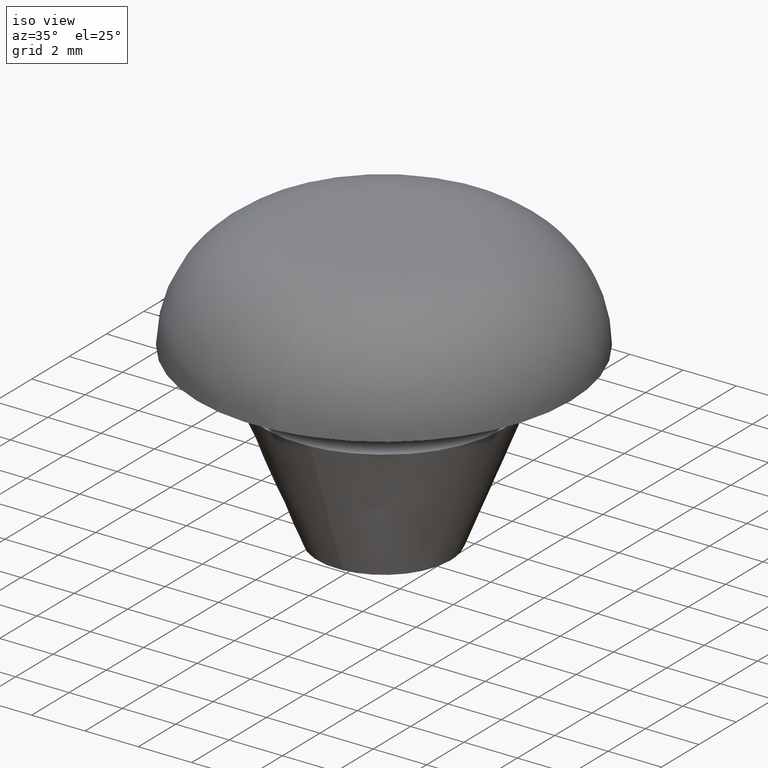
[diagram: clean part render]
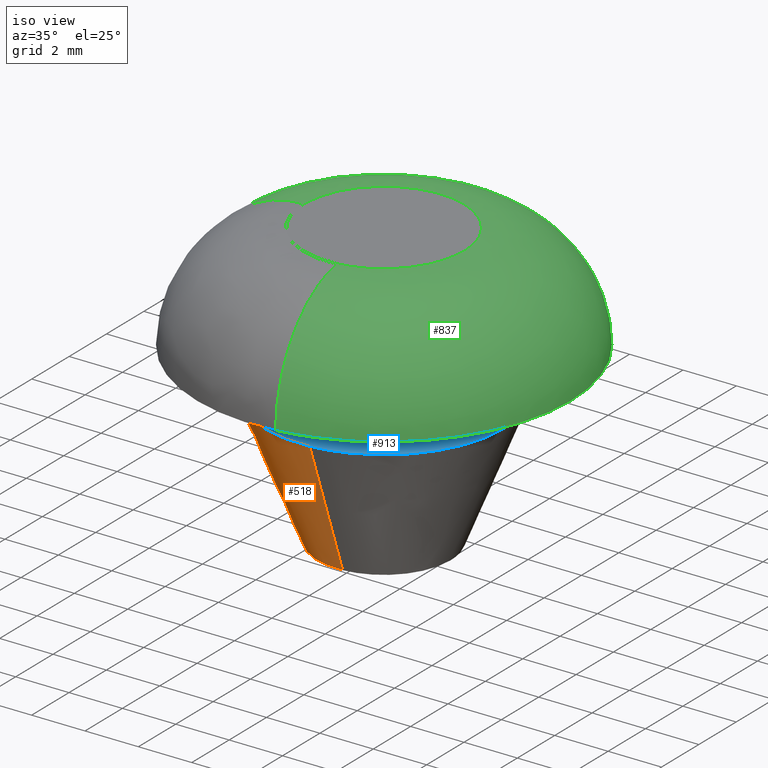
[diagram: same view with three faces highlighted in distinct colors, each labeled with its STEP entity id]
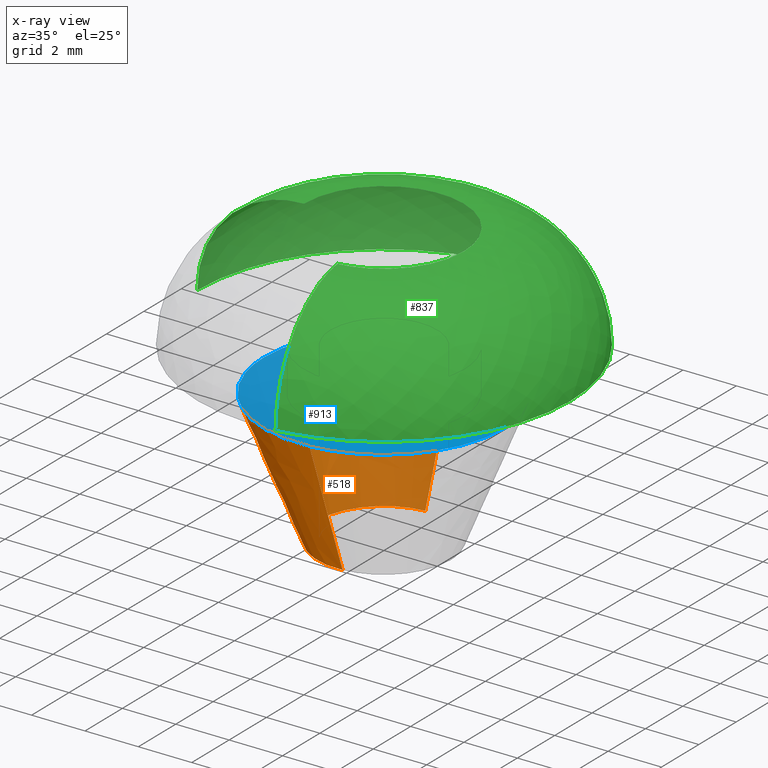
[diagram: x-ray of the same camera — body ghosted, the three highlighted faces saturated]
A machine part, iso view with three faces highlighted in distinct colors.
The next image is the same camera in x-ray (body ghosted, the three faces saturated) — at least one of them is partly hidden behind the body in this view.
Their STEP definitions:

[orange] entity #518 — the highlighted face is a freeform B-spline surface patch.
#420=CARTESIAN_POINT('',(-0.192224784533222,2.442447467646163,-0.125000000000000));
#421=CARTESIAN_POINT('',(-2.634672252179385,2.250222683112942,-0.125000000000000));
#422=CARTESIAN_POINT('',(-2.442447467646163,-0.192224784533222,-0.125000000000000));
#423=CARTESIAN_POINT('',(-2.250222683112942,-2.634672252179385,-0.125000000000000));
#424=CARTESIAN_POINT('',(0.192224784533222,-2.442447467646163,-0.125000000000000));
#425=CARTESIAN_POINT('',(-0.357086959431357,4.537220015152898,5.128125000000001));
#426=CARTESIAN_POINT('',(-4.894306974584256,4.180133055721541,5.128125000000001));
#427=CARTESIAN_POINT('',(-4.537220015152898,-0.357086959431357,5.128125000000001));
#428=CARTESIAN_POINT('',(-4.180133055721541,-4.894306974584256,5.128125000000001));
#429=CARTESIAN_POINT('',(0.357086959431357,-4.537220015152898,5.128125000000001));
#437=(BOUNDED_SURFACE()B_SPLINE_SURFACE(2,1,((#420,#425),(#421,#426),(#422,#427),(#423,#428),(#424,#429)),.UNSPECIFIED.,.F.,.F.,.U.)B_SPLINE_SURFACE_WITH_KNOTS((3,2,3),(2,2),(0.0,7.540757903002195,15.081515806004390),(0.0,5.657788775495690),.UNSPECIFIED.)GEOMETRIC_REPRESENTATION_ITEM()RATIONAL_B_SPLINE_SURFACE(((1.0,1.0),(0.707106781186548,0.707106781186548),(1.0,1.0),(0.707106781186548,0.707106781186548),(1.0,1.0)))REPRESENTATION_ITEM('')SURFACE());
#438=CARTESIAN_POINT('',(-2.500000000000000,0.0,0.0));
#439=VERTEX_POINT('',#438);
#440=CARTESIAN_POINT('',(-0.196147739338507,2.492293334332739,3.503475E-012));
#441=VERTEX_POINT('',#440);
#442=CARTESIAN_POINT('',(-2.500000000000000,0.0,0.0));
#443=CARTESIAN_POINT('',(-2.500000000000000,2.310976229110576,0.0));
#444=CARTESIAN_POINT('',(-0.196147739338507,2.492293334332738,3.503475E-012));
#452=(BOUNDED_CURVE()B_SPLINE_CURVE(2,(#442,#443,#444),.UNSPECIFIED.,.F.,.U.)B_SPLINE_CURVE_WITH_KNOTS((3,3),(0.0,0.236331300630183),.UNSPECIFIED.)CURVE()GEOMETRIC_REPRESENTATION_ITEM()RATIONAL_B_SPLINE_CURVE((1.0,0.723120658608224,0.969723356166423))REPRESENTATION_ITEM(''));
#453=EDGE_CURVE('',#439,#441,#452,.T.);
#454=ORIENTED_EDGE('',*,*,#453,.F.);
#455=CARTESIAN_POINT('',(0.196147739338507,-2.492293334332739,3.503475E-012));
#456=VERTEX_POINT('',#455);
#457=CARTESIAN_POINT('',(0.196147739338507,-2.492293334332739,3.503475E-012));
#458=CARTESIAN_POINT('',(0.098225267538045,-2.500000000000000,0.0));
#459=CARTESIAN_POINT('',(0.0,-2.500000000000000,0.0));
#460=CARTESIAN_POINT('',(-2.500000000000000,-2.500000000000000,0.0));
#461=CARTESIAN_POINT('',(-2.500000000000000,0.0,0.0));
#469=(BOUNDED_CURVE()B_SPLINE_CURVE(2,(#457,#458,#459,#460,#461),.UNSPECIFIED.,.F.,.U.)B_SPLINE_CURVE_WITH_KNOTS((3,2,3),(0.736331300630183,0.750000000000000,1.0),.UNSPECIFIED.)CURVE()GEOMETRIC_REPRESENTATION_ITEM()RATIONAL_B_SPLINE_CURVE((0.969723356166423,0.983986122578324,1.0,0.707106781186548,1.0))REPRESENTATION_ITEM(''));
#470=EDGE_CURVE('',#456,#439,#469,.T.);
#471=ORIENTED_EDGE('',*,*,#470,.F.);
#472=CARTESIAN_POINT('',(0.353065930785465,-4.486128001799032,5.000000000001885));
#473=VERTEX_POINT('',#472);
#474=CARTESIAN_POINT('',(0.196147739338507,-2.492293334332739,3.503475E-012));
#475=CARTESIAN_POINT('',(0.353065930785465,-4.486128001799032,5.000000000001885));
#476=QUASI_UNIFORM_CURVE('',1,(#474,#475),.UNSPECIFIED.,.F.,.U.);
#477=EDGE_CURVE('',#456,#473,#476,.T.);
#478=ORIENTED_EDGE('',*,*,#477,.T.);
#479=CARTESIAN_POINT('',(-4.500000000000000,0.0,5.0));
#480=VERTEX_POINT('',#479);
#481=CARTESIAN_POINT('',(0.353065930785465,-4.486128001799032,5.000000000001885));
#482=CARTESIAN_POINT('',(0.176805481544663,-4.499999999999999,5.0));
#483=CARTESIAN_POINT('',(0.0,-4.500000000000000,5.0));
#484=CARTESIAN_POINT('',(-4.500000000000000,-4.500000000000000,4.999999999999999));
#485=CARTESIAN_POINT('',(-4.500000000000000,0.0,5.0));
#493=(BOUNDED_CURVE()B_SPLINE_CURVE(2,(#481,#482,#483,#484,#485),.UNSPECIFIED.,.F.,.U.)B_SPLINE_CURVE_WITH_KNOTS((3,2,3),(0.736331300631995,0.750000000000000,1.0),.UNSPECIFIED.)CURVE()GEOMETRIC_REPRESENTATION_ITEM()RATIONAL_B_SPLINE_CURVE((0.969723356170204,0.983986122580446,1.0,0.707106781186547,1.0))REPRESENTATION_ITEM(''));
#494=EDGE_CURVE('',#473,#480,#493,.T.);
#495=ORIENTED_EDGE('',*,*,#494,.T.);
#496=CARTESIAN_POINT('',(-0.353065930785465,4.486128001799031,5.000000000001885));
#497=VERTEX_POINT('',#496);
#498=CARTESIAN_POINT('',(-4.500000000000000,0.0,5.0));
#499=CARTESIAN_POINT('',(-4.500000000000002,4.159757212443140,5.000000000000001));
#500=CARTESIAN_POINT('',(-0.353065930785465,4.486128001799031,5.000000000001886));
#508=(BOUNDED_CURVE()B_SPLINE_CURVE(2,(#498,#499,#500),.UNSPECIFIED.,.F.,.U.)B_SPLINE_CURVE_WITH_KNOTS((3,3),(0.0,0.236331300631995),.UNSPECIFIED.)CURVE()GEOMETRIC_REPRESENTATION_ITEM()RATIONAL_B_SPLINE_CURVE((1.0,0.723120658606101,0.969723356170204))REPRESENTATION_ITEM(''));
#509=EDGE_CURVE('',#480,#497,#508,.T.);
#510=ORIENTED_EDGE('',*,*,#509,.T.);
#511=CARTESIAN_POINT('',(-0.196147739338507,2.492293334332739,3.503475E-012));
#512=CARTESIAN_POINT('',(-0.353065930785465,4.486128001799031,5.000000000001885));
#513=QUASI_UNIFORM_CURVE('',1,(#511,#512),.UNSPECIFIED.,.F.,.U.);
#514=EDGE_CURVE('',#441,#497,#513,.T.);
#515=ORIENTED_EDGE('',*,*,#514,.F.);
#516=EDGE_LOOP('',(#454,#471,#478,#495,#510,#515));
#517=FACE_OUTER_BOUND('',#516,.T.);
#518=ADVANCED_FACE('',(#517),#437,.T.);

[blue] entity #913 — the highlighted face is a freeform B-spline surface patch.
#290=CARTESIAN_POINT('',(0.183141240990780,-2.994404663005506,5.0));
#291=VERTEX_POINT('',#290);
#297=CARTESIAN_POINT('',(3.0,0.0,5.0));
#298=VERTEX_POINT('',#297);
#299=CARTESIAN_POINT('',(3.0,0.0,5.0));
#300=CARTESIAN_POINT('',(3.000000000000000,-2.822122334172474,5.0));
#301=CARTESIAN_POINT('',(0.183141240990780,-2.994404663005506,5.0));
#309=(BOUNDED_CURVE()B_SPLINE_CURVE(2,(#299,#300,#301),.UNSPECIFIED.,.F.,.U.)B_SPLINE_CURVE_WITH_KNOTS((3,3),(0.500000000000000,0.739333214493585),.UNSPECIFIED.)CURVE()GEOMETRIC_REPRESENTATION_ITEM()RATIONAL_B_SPLINE_CURVE((1.0,0.719603697752014,0.976072582297030))REPRESENTATION_ITEM(''));
#310=EDGE_CURVE('',#298,#291,#309,.T.);
#312=CARTESIAN_POINT('',(-0.354102379321857,2.979028617680349,5.0));
#313=VERTEX_POINT('',#312);
#314=CARTESIAN_POINT('',(-0.354102379321857,2.979028617680349,5.0));
#315=CARTESIAN_POINT('',(-0.177672030875177,3.0,4.999999999999999));
#316=CARTESIAN_POINT('',(0.0,3.0,5.0));
#317=CARTESIAN_POINT('',(3.0,3.0,5.000000000000001));
#318=CARTESIAN_POINT('',(3.0,0.0,5.0));
#326=(BOUNDED_CURVE()B_SPLINE_CURVE(2,(#314,#315,#316,#317,#318),.UNSPECIFIED.,.F.,.U.)B_SPLINE_CURVE_WITH_KNOTS((3,2,3),(0.229562510350900,0.250000000000000,0.500000000000000),.UNSPECIFIED.)CURVE()GEOMETRIC_REPRESENTATION_ITEM()RATIONAL_B_SPLINE_CURVE((0.956026826386506,0.976055991488833,1.0,0.707106781186548,1.0))REPRESENTATION_ITEM(''));
#327=EDGE_CURVE('',#313,#298,#326,.T.);
#371=CARTESIAN_POINT('',(-3.0,0.0,5.0));
#372=VERTEX_POINT('',#371);
#373=CARTESIAN_POINT('',(-3.0,0.0,5.0));
#374=CARTESIAN_POINT('',(-3.000000000000000,2.664524162691058,4.999999999999999));
#375=CARTESIAN_POINT('',(-0.354102379321857,2.979028617680350,5.0));
#383=(BOUNDED_CURVE()B_SPLINE_CURVE(2,(#373,#374,#375),.UNSPECIFIED.,.F.,.U.)B_SPLINE_CURVE_WITH_KNOTS((3,3),(0.0,0.229562510350900),.UNSPECIFIED.)CURVE()GEOMETRIC_REPRESENTATION_ITEM()RATIONAL_B_SPLINE_CURVE((1.0,0.731050789697714,0.956026826386506))REPRESENTATION_ITEM(''));
#384=EDGE_CURVE('',#372,#313,#383,.T.);
#386=CARTESIAN_POINT('',(0.183141240990780,-2.994404663005506,5.0));
#387=CARTESIAN_POINT('',(0.091656094951915,-3.000000000000000,5.0));
#388=CARTESIAN_POINT('',(0.0,-3.0,5.0));
#389=CARTESIAN_POINT('',(-3.0,-3.0,5.000000000000001));
#390=CARTESIAN_POINT('',(-3.0,0.0,5.0));
#398=(BOUNDED_CURVE()B_SPLINE_CURVE(2,(#386,#387,#388,#389,#390),.UNSPECIFIED.,.F.,.U.)B_SPLINE_CURVE_WITH_KNOTS((3,2,3),(0.739333214493585,0.750000000000000,1.0),.UNSPECIFIED.)CURVE()GEOMETRIC_REPRESENTATION_ITEM()RATIONAL_B_SPLINE_CURVE((0.976072582297030,0.987503083434533,1.0,0.707106781186548,1.0))REPRESENTATION_ITEM(''));
#399=EDGE_CURVE('',#291,#372,#398,.T.);
#472=CARTESIAN_POINT('',(0.353065930785465,-4.486128001799032,5.000000000001885));
#473=VERTEX_POINT('',#472);
#479=CARTESIAN_POINT('',(-4.500000000000000,0.0,5.0));
#480=VERTEX_POINT('',#479);
#481=CARTESIAN_POINT('',(0.353065930785465,-4.486128001799032,5.000000000001885));
#482=CARTESIAN_POINT('',(0.176805481544663,-4.499999999999999,5.0));
#483=CARTESIAN_POINT('',(0.0,-4.500000000000000,5.0));
#484=CARTESIAN_POINT('',(-4.500000000000000,-4.500000000000000,4.999999999999999));
#485=CARTESIAN_POINT('',(-4.500000000000000,0.0,5.0));
#493=(BOUNDED_CURVE()B_SPLINE_CURVE(2,(#481,#482,#483,#484,#485),.UNSPECIFIED.,.F.,.U.)B_SPLINE_CURVE_WITH_KNOTS((3,2,3),(0.736331300631995,0.750000000000000,1.0),.UNSPECIFIED.)CURVE()GEOMETRIC_REPRESENTATION_ITEM()RATIONAL_B_SPLINE_CURVE((0.969723356170204,0.983986122580446,1.0,0.707106781186547,1.0))REPRESENTATION_ITEM(''));
#494=EDGE_CURVE('',#473,#480,#493,.T.);
#496=CARTESIAN_POINT('',(-0.353065930785465,4.486128001799031,5.000000000001885));
#497=VERTEX_POINT('',#496);
#498=CARTESIAN_POINT('',(-4.500000000000000,0.0,5.0));
#499=CARTESIAN_POINT('',(-4.500000000000002,4.159757212443140,5.000000000000001));
#500=CARTESIAN_POINT('',(-0.353065930785465,4.486128001799031,5.000000000001886));
#508=(BOUNDED_CURVE()B_SPLINE_CURVE(2,(#498,#499,#500),.UNSPECIFIED.,.F.,.U.)B_SPLINE_CURVE_WITH_KNOTS((3,3),(0.0,0.236331300631995),.UNSPECIFIED.)CURVE()GEOMETRIC_REPRESENTATION_ITEM()RATIONAL_B_SPLINE_CURVE((1.0,0.723120658606101,0.969723356170204))REPRESENTATION_ITEM(''));
#509=EDGE_CURVE('',#480,#497,#508,.T.);
#555=CARTESIAN_POINT('',(4.500000000000000,0.0,5.0));
#556=VERTEX_POINT('',#555);
#557=CARTESIAN_POINT('',(-0.353065930785465,4.486128001799031,5.000000000001886));
#558=CARTESIAN_POINT('',(-0.176805481544663,4.500000000000001,5.0));
#559=CARTESIAN_POINT('',(0.0,4.500000000000000,5.0));
#560=CARTESIAN_POINT('',(4.500000000000000,4.500000000000000,4.999999999999999));
#561=CARTESIAN_POINT('',(4.500000000000000,0.0,5.0));
#569=(BOUNDED_CURVE()B_SPLINE_CURVE(2,(#557,#558,#559,#560,#561),.UNSPECIFIED.,.F.,.U.)B_SPLINE_CURVE_WITH_KNOTS((3,2,3),(0.236331300631995,0.250000000000000,0.500000000000000),.UNSPECIFIED.)CURVE()GEOMETRIC_REPRESENTATION_ITEM()RATIONAL_B_SPLINE_CURVE((0.969723356170204,0.983986122580446,1.0,0.707106781186547,1.0))REPRESENTATION_ITEM(''));
#570=EDGE_CURVE('',#497,#556,#569,.T.);
#572=CARTESIAN_POINT('',(4.500000000000000,0.0,5.0));
#573=CARTESIAN_POINT('',(4.500000000000001,-4.159757212443157,4.999999999999999));
#574=CARTESIAN_POINT('',(0.353065930785465,-4.486128001799032,5.000000000001885));
#582=(BOUNDED_CURVE()B_SPLINE_CURVE(2,(#572,#573,#574),.UNSPECIFIED.,.F.,.U.)B_SPLINE_CURVE_WITH_KNOTS((3,3),(0.500000000000000,0.736331300631996),.UNSPECIFIED.)CURVE()GEOMETRIC_REPRESENTATION_ITEM()RATIONAL_B_SPLINE_CURVE((1.0,0.723120658606100,0.969723356170206))REPRESENTATION_ITEM(''));
#583=EDGE_CURVE('',#556,#473,#582,.T.);
#896=CARTESIAN_POINT('',(-4.949549982556253,-4.948176387270834,5.0));
#897=CARTESIAN_POINT('',(4.949550223955065,-4.948176387270834,5.0));
#898=CARTESIAN_POINT('',(-4.949549982556253,4.948176628669645,5.0));
#899=CARTESIAN_POINT('',(4.949550223955065,4.948176628669645,5.0));
#900=B_SPLINE_SURFACE_WITH_KNOTS('',1,1,((#896,#898),(#897,#899)),.UNSPECIFIED.,.F.,.F.,.U.,(2,2),(2,2),(0.0,9.899100206511317),(0.0,9.896353015940480),.UNSPECIFIED.);
#901=ORIENTED_EDGE('',*,*,#494,.F.);
#902=ORIENTED_EDGE('',*,*,#583,.F.);
#903=ORIENTED_EDGE('',*,*,#570,.F.);
#904=ORIENTED_EDGE('',*,*,#509,.F.);
#905=EDGE_LOOP('',(#901,#902,#903,#904));
#906=FACE_OUTER_BOUND('',#905,.T.);
#907=ORIENTED_EDGE('',*,*,#310,.T.);
#908=ORIENTED_EDGE('',*,*,#399,.T.);
#909=ORIENTED_EDGE('',*,*,#384,.T.);
#910=ORIENTED_EDGE('',*,*,#327,.T.);
#911=EDGE_LOOP('',(#907,#908,#909,#910));
#912=FACE_BOUND('',#911,.T.);
#913=ADVANCED_FACE('',(#906,#912),#900,.T.);

[green] entity #837 — the highlighted face is a freeform B-spline surface patch.
#645=CARTESIAN_POINT('',(0.346392114872776,-2.979934009164752,10.599999999999770));
#646=VERTEX_POINT('',#645);
#647=CARTESIAN_POINT('',(-3.000000384556081,0.0,10.599999999999961));
#648=VERTEX_POINT('',#647);
#664=CARTESIAN_POINT('',(-7.0,0.0,6.599999999999989));
#665=VERTEX_POINT('',#664);
#666=CARTESIAN_POINT('',(-6.999999999999998,0.0,6.599999999999976));
#667=CARTESIAN_POINT('',(-7.000000000000018,0.0,9.364321978561874));
#668=CARTESIAN_POINT('',(-4.414213562373095,0.0,10.341657386773941));
#669=CARTESIAN_POINT('',(-3.730703626449663,0.0,10.599999859501816));
#670=CARTESIAN_POINT('',(-3.000000384556082,0.0,10.599999999999962));
#678=(BOUNDED_CURVE()B_SPLINE_CURVE(2,(#666,#667,#668,#669,#670),.UNSPECIFIED.,.F.,.U.)B_SPLINE_CURVE_WITH_KNOTS((3,2,3),(0.499999999999999,0.750000000000000,0.825998069180932),.UNSPECIFIED.)CURVE()GEOMETRIC_REPRESENTATION_ITEM()RATIONAL_B_SPLINE_CURVE((1.000000000000002,0.822664388008035,1.0,0.946091343566368,0.924958317541489))REPRESENTATION_ITEM(''));
#679=EDGE_CURVE('',#665,#648,#678,.T.);
#681=CARTESIAN_POINT('',(0.808249330410697,-6.953181503447942,6.599999997219419));
#682=VERTEX_POINT('',#681);
#698=CARTESIAN_POINT('',(0.808249330410697,-6.953181503447942,6.599999997219419));
#699=CARTESIAN_POINT('',(0.808249605733270,-6.953181475313077,9.364321977109285));
#700=CARTESIAN_POINT('',(0.509683767064527,-4.384689707588152,10.341657386773942));
#701=CARTESIAN_POINT('',(0.430762722174464,-3.705750499391332,10.600000176701663));
#702=CARTESIAN_POINT('',(0.346392114872776,-2.979934009164752,10.599999999999765));
#710=(BOUNDED_CURVE()B_SPLINE_CURVE(2,(#698,#699,#700,#701,#702),.UNSPECIFIED.,.F.,.U.)B_SPLINE_CURVE_WITH_KNOTS((3,2,3),(0.499999999694322,0.750000000000000,0.825998157463053),.UNSPECIFIED.)CURVE()GEOMETRIC_REPRESENTATION_ITEM()RATIONAL_B_SPLINE_CURVE((0.956886118605624,0.787196132607223,0.956886118190660,0.905301613276640,0.885079726979495))REPRESENTATION_ITEM(''));
#711=EDGE_CURVE('',#682,#646,#710,.T.);
#716=CARTESIAN_POINT('',(-6.988787665481205,0.0,6.300712580109016));
#717=CARTESIAN_POINT('',(-7.0,0.0,6.450146263777079));
#718=CARTESIAN_POINT('',(-7.0,0.0,6.600000000000000));
#719=CARTESIAN_POINT('',(-7.000000000000002,0.0,9.364321978561881));
#720=CARTESIAN_POINT('',(-4.414213562373095,0.0,10.341657386773941));
#721=CARTESIAN_POINT('',(-3.573993190311557,0.0,10.659230836911798));
#722=CARTESIAN_POINT('',(-2.678662938101394,0.0,10.587071919673681));
#723=CARTESIAN_POINT('',(-6.988787665481203,6.988787665481203,6.300712580109015));
#724=CARTESIAN_POINT('',(-6.999999999999998,6.999999999999998,6.450146263777079));
#725=CARTESIAN_POINT('',(-6.999999999999999,6.999999999999999,6.599999999999999));
#726=CARTESIAN_POINT('',(-7.0,7.0,9.364321978561879));
#727=CARTESIAN_POINT('',(-4.414213562373095,4.414213562373095,10.341657386773942));
#728=CARTESIAN_POINT('',(-3.573993190311556,3.573993190311556,10.659230836911799));
#729=CARTESIAN_POINT('',(-2.678662938101394,2.678662938101394,10.587071919673681));
#730=CARTESIAN_POINT('',(0.0,6.988787665481205,6.300712580109016));
#731=CARTESIAN_POINT('',(0.0,7.0,6.450146263777079));
#732=CARTESIAN_POINT('',(0.0,7.0,6.600000000000000));
#733=CARTESIAN_POINT('',(0.0,7.000000000000002,9.364321978561881));
#734=CARTESIAN_POINT('',(0.0,4.414213562373095,10.341657386773941));
#735=CARTESIAN_POINT('',(0.0,3.573993190311557,10.659230836911798));
#736=CARTESIAN_POINT('',(0.0,2.678662938101394,10.587071919673681));
#737=CARTESIAN_POINT('',(6.988787665481203,6.988787665481203,6.300712580109015));
#738=CARTESIAN_POINT('',(6.999999999999998,6.999999999999998,6.450146263777079));
#739=CARTESIAN_POINT('',(6.999999999999999,6.999999999999999,6.599999999999999));
#740=CARTESIAN_POINT('',(7.0,7.0,9.364321978561879));
#741=CARTESIAN_POINT('',(4.414213562373095,4.414213562373095,10.341657386773942));
#742=CARTESIAN_POINT('',(3.573993190311556,3.573993190311556,10.659230836911799));
#743=CARTESIAN_POINT('',(2.678662938101394,2.678662938101394,10.587071919673681));
#744=CARTESIAN_POINT('',(6.988787665481205,0.0,6.300712580109016));
#745=CARTESIAN_POINT('',(7.0,0.0,6.450146263777079));
#746=CARTESIAN_POINT('',(7.0,0.0,6.600000000000000));
#747=CARTESIAN_POINT('',(7.000000000000002,0.0,9.364321978561881));
#748=CARTESIAN_POINT('',(4.414213562373095,0.0,10.341657386773941));
#749=CARTESIAN_POINT('',(3.573993190311557,0.0,10.659230836911798));
#750=CARTESIAN_POINT('',(2.678662938101394,0.0,10.587071919673681));
#751=CARTESIAN_POINT('',(6.988787665481204,-6.223457414952721,6.300712580109015));
#752=CARTESIAN_POINT('',(6.999999999999999,-6.233441905788606,6.450146263777080));
#753=CARTESIAN_POINT('',(7.0,-6.233441905788605,6.600000000000000));
#754=CARTESIAN_POINT('',(6.999999999999999,-6.233441905788602,9.364321978561879));
#755=CARTESIAN_POINT('',(4.414213562373095,-3.930820542970979,10.341657386773942));
#756=CARTESIAN_POINT('',(3.573993190311557,-3.182611274784452,10.659230836911799));
#757=CARTESIAN_POINT('',(2.678662938101395,-2.385327115692009,10.587071919673683));
#758=CARTESIAN_POINT('',(0.806954981725348,-6.942044129120102,6.300712580109015));
#759=CARTESIAN_POINT('',(0.808249605289518,-6.953181471495573,6.450146263777079));
#760=CARTESIAN_POINT('',(0.808249605289518,-6.953181471495573,6.600000000000000));
#761=CARTESIAN_POINT('',(0.808249605289518,-6.953181471495577,9.364321978561881));
#762=CARTESIAN_POINT('',(0.509683767064527,-4.384689707588152,10.341657386773942));
#763=CARTESIAN_POINT('',(0.412668369339534,-3.550089032875095,10.659230836911801));
#764=CARTESIAN_POINT('',(0.309289751774873,-2.660747072798358,10.587071919673683));
#772=(BOUNDED_SURFACE()B_SPLINE_SURFACE(2,2,((#716,#723,#730,#737,#744,#751,#758),(#717,#724,#731,#738,#745,#752,#759),(#718,#725,#732,#739,#746,#753,#760),(#719,#726,#733,#740,#747,#754,#761),(#720,#727,#734,#741,#748,#755,#762),(#721,#728,#735,#742,#749,#756,#763),(#722,#729,#736,#743,#750,#757,#764)),.UNSPECIFIED.,.F.,.F.,.U.)B_SPLINE_SURFACE_WITH_KNOTS((3,2,2,3),(3,2,2,3),(0.0,0.325068791231680,5.315804910756388,7.158021290805317),(0.0,11.597979746446660,23.195959492893330,33.866100859624247),.UNSPECIFIED.)GEOMETRIC_REPRESENTATION_ITEM()RATIONAL_B_SPLINE_SURFACE(((0.978403380119462,0.691835664818311,0.978403380119462,0.691835664818311,0.978403380119462,0.714761082042403,0.936220612427133),(0.988449344615309,0.698939234436884,0.988449344615309,0.698939234436884,0.988449344615309,0.722100043251158,0.945833456397045),(1.0,0.707106781186548,1.0,0.707106781186548,1.0,0.730538238691624,0.956886118190660),(0.822664388008036,0.581711567401163,0.822664388008036,0.581711567401163,0.822664388008036,0.600987793049713,0.787196132814704),(1.0,0.707106781186548,1.0,0.707106781186548,1.0,0.730538238691624,0.956886118190660),(0.934540604561415,0.660819998779552,0.934540604561415,0.660819998779552,0.934540604561415,0.682717647242101,0.894248931390325),(0.917406893998570,0.648704635853677,0.917406893998570,0.648704635853677,0.917406893998570,0.670200816505268,0.877853921599641)))REPRESENTATION_ITEM('')SURFACE());
#773=CARTESIAN_POINT('',(3.0,0.0,10.600000000000000));
#774=VERTEX_POINT('',#773);
#775=CARTESIAN_POINT('',(3.0,0.0,10.600000000000000));
#776=CARTESIAN_POINT('',(3.0,-2.671475518924087,10.600000000000000));
#777=CARTESIAN_POINT('',(0.346392114872776,-2.979934009164752,10.599999999999765));
#785=(BOUNDED_CURVE()B_SPLINE_CURVE(2,(#775,#776,#777),.UNSPECIFIED.,.F.,.U.)B_SPLINE_CURVE_WITH_KNOTS((3,3),(0.500000000000000,0.730000026192411),.UNSPECIFIED.)CURVE()GEOMETRIC_REPRESENTATION_ITEM()RATIONAL_B_SPLINE_CURVE((1.0,0.730538208005306,0.956886169743681))REPRESENTATION_ITEM(''));
#786=EDGE_CURVE('',#774,#646,#785,.T.);
#787=ORIENTED_EDGE('',*,*,#786,.T.);
#788=ORIENTED_EDGE('',*,*,#711,.F.);
#789=CARTESIAN_POINT('',(7.0,0.0,6.600000000000000));
#790=VERTEX_POINT('',#789);
#791=CARTESIAN_POINT('',(7.0,0.0,6.600000000000000));
#792=CARTESIAN_POINT('',(6.999999999999999,-6.233442401958143,6.599999999999999));
#793=CARTESIAN_POINT('',(0.808249330410697,-6.953181503447942,6.599999997219419));
#801=(BOUNDED_CURVE()B_SPLINE_CURVE(2,(#791,#792,#793),.UNSPECIFIED.,.F.,.U.)B_SPLINE_CURVE_WITH_KNOTS((3,3),(0.500000000000000,0.730000013374358),.UNSPECIFIED.)CURVE()GEOMETRIC_REPRESENTATION_ITEM()RATIONAL_B_SPLINE_CURVE((1.0,0.730538223022588,0.956886144514641))REPRESENTATION_ITEM(''));
#802=EDGE_CURVE('',#790,#682,#801,.T.);
#803=ORIENTED_EDGE('',*,*,#802,.F.);
#804=CARTESIAN_POINT('',(-7.0,0.0,6.600000000000000));
#805=CARTESIAN_POINT('',(-6.999999999999999,6.999999999999999,6.600000000000001));
#806=CARTESIAN_POINT('',(0.0,7.0,6.600000000000000));
#807=CARTESIAN_POINT('',(6.999999999999999,6.999999999999999,6.600000000000001));
#808=CARTESIAN_POINT('',(7.0,0.0,6.600000000000000));
#816=(BOUNDED_CURVE()B_SPLINE_CURVE(2,(#804,#805,#806,#807,#808),.UNSPECIFIED.,.F.,.U.)B_SPLINE_CURVE_WITH_KNOTS((3,2,3),(0.0,0.250000000000000,0.500000000000000),.UNSPECIFIED.)CURVE()GEOMETRIC_REPRESENTATION_ITEM()RATIONAL_B_SPLINE_CURVE((1.0,0.707106781186547,1.0,0.707106781186547,1.0))REPRESENTATION_ITEM(''));
#817=EDGE_CURVE('',#665,#790,#816,.T.);
#818=ORIENTED_EDGE('',*,*,#817,.F.);
#819=ORIENTED_EDGE('',*,*,#679,.T.);
#820=CARTESIAN_POINT('',(-3.000000384556081,0.0,10.599999999999961));
#821=CARTESIAN_POINT('',(-3.0,3.0,10.600000000000000));
#822=CARTESIAN_POINT('',(0.0,3.0,10.600000000000000));
#823=CARTESIAN_POINT('',(3.0,3.0,10.600000000000000));
#824=CARTESIAN_POINT('',(3.0,0.0,10.600000000000000));
#832=(BOUNDED_CURVE()B_SPLINE_CURVE(2,(#820,#821,#822,#823,#824),.UNSPECIFIED.,.F.,.U.)B_SPLINE_CURVE_WITH_KNOTS((3,2,3),(0.0,0.250000000000000,0.500000000000000),.UNSPECIFIED.)CURVE()GEOMETRIC_REPRESENTATION_ITEM()RATIONAL_B_SPLINE_CURVE((1.0,0.707106781186548,1.0,0.707106781186548,1.0))REPRESENTATION_ITEM(''));
#833=EDGE_CURVE('',#648,#774,#832,.T.);
#834=ORIENTED_EDGE('',*,*,#833,.T.);
#835=EDGE_LOOP('',(#787,#788,#803,#818,#819,#834));
#836=FACE_OUTER_BOUND('',#835,.T.);
#837=ADVANCED_FACE('',(#836),#772,.T.);